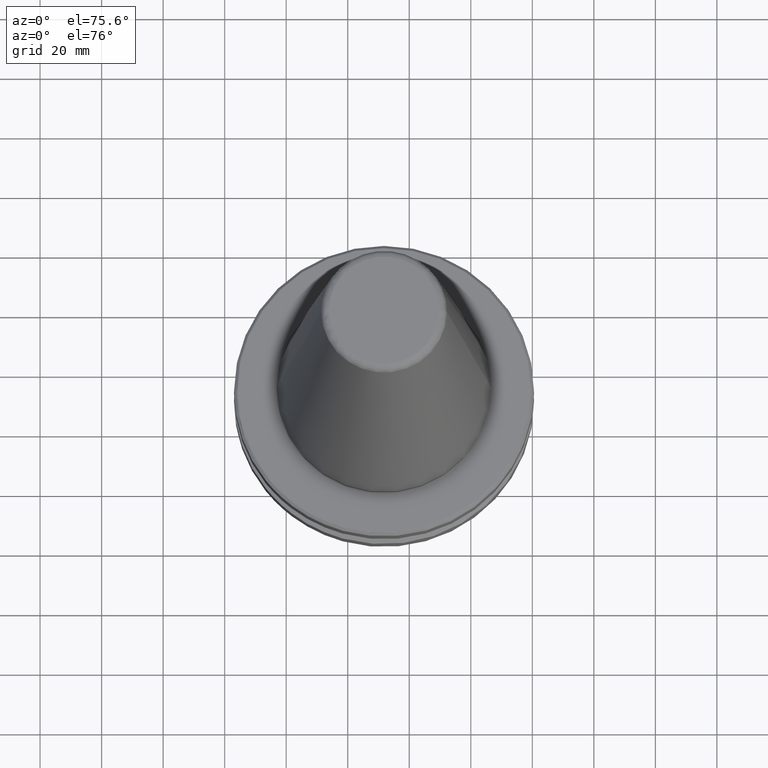
[diagram: clean part render]
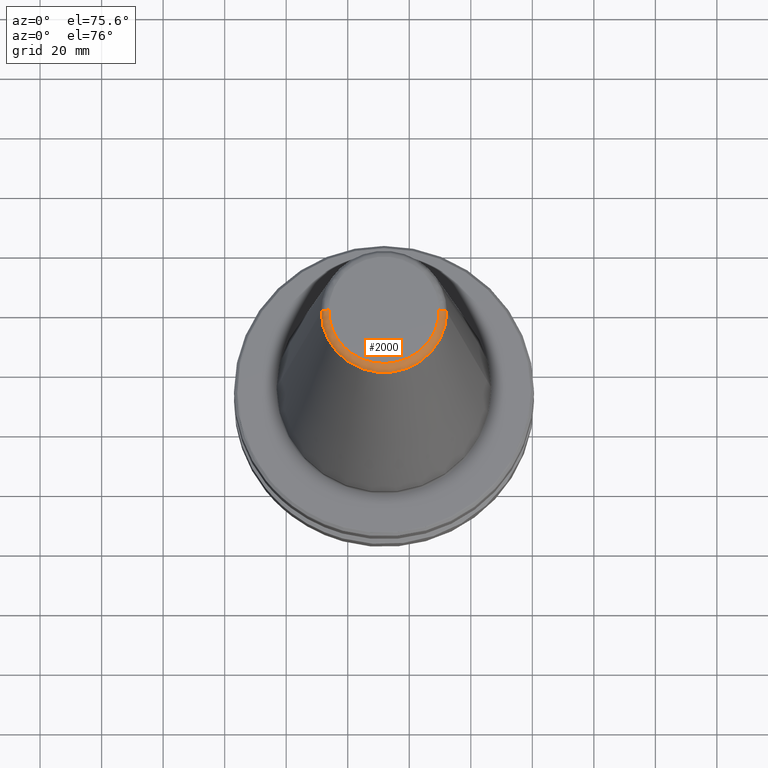
[diagram: same view with one face highlighted and labeled with its STEP entity id]
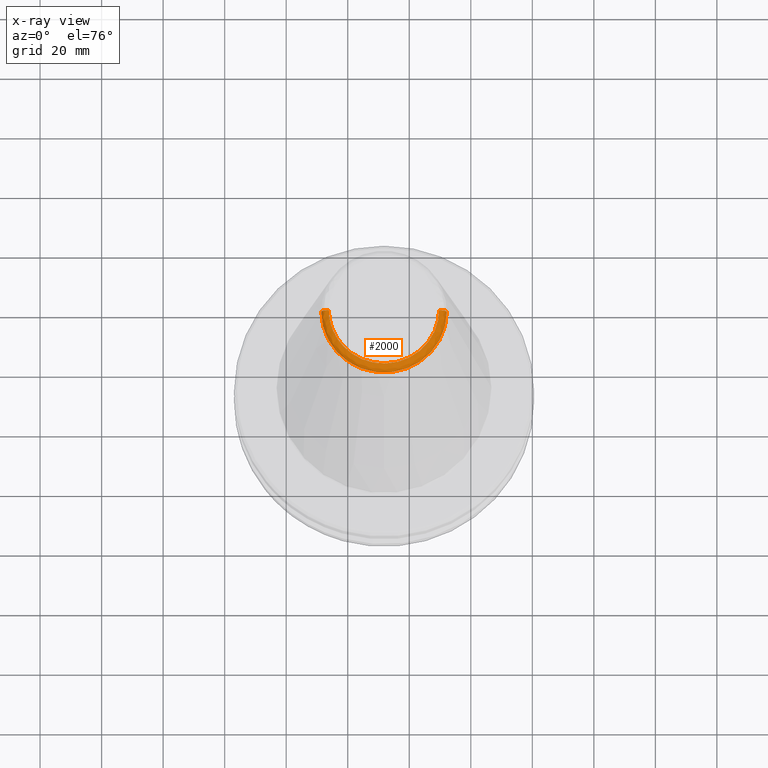
[diagram: x-ray of the same camera — body ghosted, the highlighted face saturated]
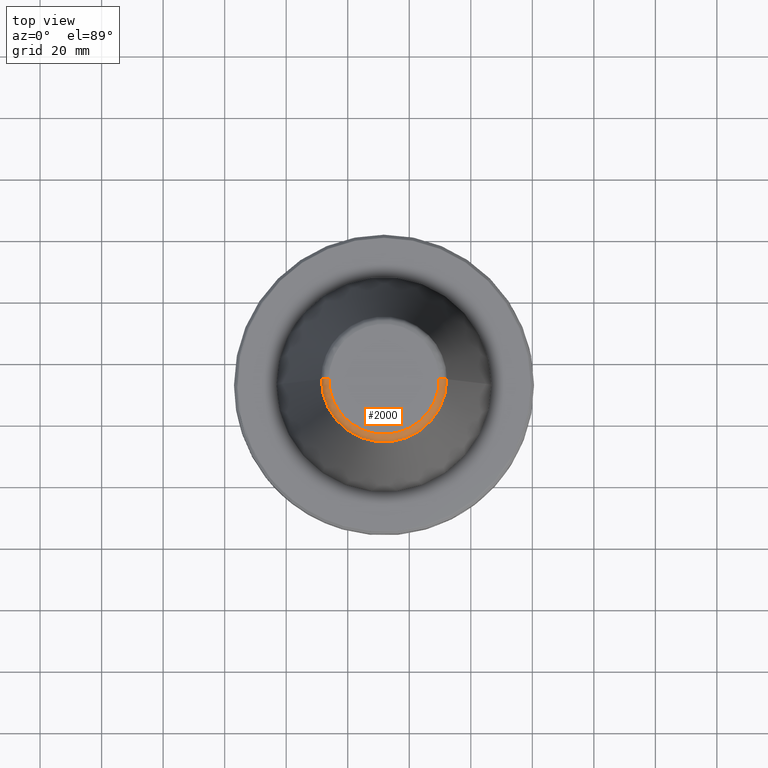
[diagram: same view with one face highlighted and labeled with its STEP entity id]
A machine part, auxiliary view. The second image highlights one B-rep face of the part: STEP entity #2000.
The next image is the same camera in x-ray: the body ghosted, the highlighted face saturated — about 0% of this face is hidden behind the body in this view.
A second angle (top view) of the same face is appended — the face is thin or edge-on in the first view.
In plain terms, the highlighted face is a freeform B-spline surface patch.
Its self-contained STEP definition (entity closure, byte-faithful):
#85 =( BOUNDED_CURVE ( )  B_SPLINE_CURVE ( 3, ( #2917, #3317, #610, #3333 ),
 .UNSPECIFIED., .F., .T. ) 
 B_SPLINE_CURVE_WITH_KNOTS ( ( 4, 4 ),
 ( 0.0000000000000000000, 1.000000000000000000 ),
 .UNSPECIFIED. ) 
 CURVE ( )  GEOMETRIC_REPRESENTATION_ITEM ( )  RATIONAL_B_SPLINE_CURVE ( ( 0.9606698262249131500, 0.3202232754083040300, 0.3202232754083040300, 0.9606698262249131500 ) ) 
 REPRESENTATION_ITEM ( '' )  );
#360 = CARTESIAN_POINT ( 'NONE',  ( 111.0149933382247800, 111.8872747687009900, 199.7495027802803800 ) ) ;
#540 = CARTESIAN_POINT ( 'NONE',  ( 109.7134676108642000, 111.8872747687010000, 199.7495027782804000 ) ) ;
#550 = VERTEX_POINT ( 'NONE', #1501 ) ;
#605 = CARTESIAN_POINT ( 'NONE',  ( 91.78900745422478700, 111.8872747687010000, 197.6102733462804200 ) ) ;
#610 = CARTESIAN_POINT ( 'NONE',  ( 73.86454729743432800, 76.03835445612011800, 199.7495027782804000 ) ) ;
#735 = EDGE_CURVE ( 'NONE', #1506, #550, #2259, .T. ) ;
#738 = ORIENTED_EDGE ( 'NONE', *, *, #4989, .T. ) ;
#778 = CARTESIAN_POINT ( 'NONE',  ( 71.57853619422478200, 71.46633224870099400, 198.8981757232804200 ) ) ;
#796 = CARTESIAN_POINT ( 'NONE',  ( 71.57853619422478200, 111.8872747687009900, 198.8981757232804200 ) ) ;
#842 = EDGE_LOOP ( 'NONE', ( #4970, #3571, #3845, #738 ) ) ;
#857 = CARTESIAN_POINT ( 'NONE',  ( 109.7134676142248000, 76.03835444970100400, 199.7495027782804000 ) ) ;
#951 = CARTESIAN_POINT ( 'NONE',  ( 111.0149933382247800, 111.8872747687009800, 199.7495027802803500 ) ) ;
#1009 = DIRECTION ( 'NONE',  ( -1.000000000000000000, 0.0000000000000000000, 1.360681347180457300E-015 ) ) ;
#1170 = CARTESIAN_POINT ( 'NONE',  ( 111.0149933382247800, 73.43530299970102200, 199.7495027802804100 ) ) ;
#1182 = CARTESIAN_POINT ( 'NONE',  ( 72.56302157022480500, 111.8872747687009900, 199.7495027802803800 ) ) ;
#1225 = CARTESIAN_POINT ( 'NONE',  ( 71.57853619422478200, 111.8872747687009900, 198.8981757232804200 ) ) ;
#1237 = CARTESIAN_POINT ( 'NONE',  ( 109.7134676142247800, 111.8872747687010000, 199.7495027782804000 ) ) ;
#1240 = CARTESIAN_POINT ( 'NONE',  ( 71.39071532422480000, 111.8872747687010000, 197.6102733462803900 ) ) ;
#1397 = CARTESIAN_POINT ( 'NONE',  ( 73.86454729758537500, 111.8872747687010000, 199.7495027782804000 ) ) ;
#1484 =( BOUNDED_CURVE ( )  B_SPLINE_CURVE ( 3, ( #540, #951, #4405, #2094 ),
 .UNSPECIFIED., .F., .F. ) 
 B_SPLINE_CURVE_WITH_KNOTS ( ( 4, 4 ),
 ( 0.06744229110089948500, 0.9325577070699508900 ),
 .UNSPECIFIED. ) 
 CURVE ( )  GEOMETRIC_REPRESENTATION_ITEM ( )  RATIONAL_B_SPLINE_CURVE ( ( 0.9606698262249141500, 0.8046626145418701600, 0.8046626143771260500, 0.9606698257306810500 ) ) 
 REPRESENTATION_ITEM ( '' )  );
#1501 = CARTESIAN_POINT ( 'NONE',  ( 73.86454729758537500, 111.8872747687010000, 199.7495027782804000 ) ) ;
#1506 = VERTEX_POINT ( 'NONE', #2217 ) ;
#1576 = CARTESIAN_POINT ( 'NONE',  ( 73.86454729422479200, 76.03835444970100400, 199.7495027782804000 ) ) ;
#1611 = CARTESIAN_POINT ( 'NONE',  ( 109.7025659593233900, 111.8872747687010000, 199.7495027782636300 ) ) ;
#1715 = CARTESIAN_POINT ( 'NONE',  ( 109.7134676108642000, 111.8872747687010000, 199.7495027782804000 ) ) ;
#2000 = ADVANCED_FACE ( 'NONE', ( #4780 ), #3834, .T. ) ;
#2094 = CARTESIAN_POINT ( 'NONE',  ( 112.1872995842247900, 111.8872747681780300, 197.6102733462803900 ) ) ;
#2217 = CARTESIAN_POINT ( 'NONE',  ( 71.39071532422480000, 111.8872747687010000, 197.6102733462803900 ) ) ;
#2259 =( BOUNDED_CURVE ( )  B_SPLINE_CURVE ( 3, ( #1240, #1225, #4898, #1397 ),
 .UNSPECIFIED., .F., .F. ) 
 B_SPLINE_CURVE_WITH_KNOTS ( ( 4, 4 ),
 ( 0.05879113786594865300, 0.9239065538350027500 ),
 .UNSPECIFIED. ) 
 CURVE ( )  GEOMETRIC_REPRESENTATION_ITEM ( )  RATIONAL_B_SPLINE_CURVE ( ( 0.9606698257306810500, 0.8046626143771260500, 0.8046626145418701600, 0.9606698262249141500 ) ) 
 REPRESENTATION_ITEM ( '' )  );
#2306 = CARTESIAN_POINT ( 'NONE',  ( 73.86454729422479200, 111.8872747687010000, 199.7495027782804000 ) ) ;
#2322 = CARTESIAN_POINT ( 'NONE',  ( 109.7025659593233900, 76.06015775952055000, 199.7495027782636300 ) ) ;
#2420 = CARTESIAN_POINT ( 'NONE',  ( 112.1872995842247900, 111.8872747681780300, 197.6102733462803900 ) ) ;
#2433 = VERTEX_POINT ( 'NONE', #1715 ) ;
#2776 = CIRCLE ( 'NONE', #3550, 20.39829212999999400 ) ;
#2917 = CARTESIAN_POINT ( 'NONE',  ( 109.7134676108642000, 111.8872747687010000, 199.7495027782804000 ) ) ;
#3037 = CARTESIAN_POINT ( 'NONE',  ( 73.89725225892900100, 111.8872747687010000, 199.7495027782301500 ) ) ;
#3091 = CARTESIAN_POINT ( 'NONE',  ( 73.89725225892898700, 76.10376437915968500, 199.7495027782301800 ) ) ;
#3121 = CARTESIAN_POINT ( 'NONE',  ( 109.6807626495205700, 111.8872747687010000, 199.7495027782301500 ) ) ;
#3146 = CARTESIAN_POINT ( 'NONE',  ( 109.6807626495205900, 76.10376437915968500, 199.7495027782301800 ) ) ;
#3183 = EDGE_CURVE ( 'NONE', #2433, #3438, #1484, .T. ) ;
#3194 = CARTESIAN_POINT ( 'NONE',  ( 73.87544894912619500, 76.06015775952055000, 199.7495027782636300 ) ) ;
#3317 = CARTESIAN_POINT ( 'NONE',  ( 109.7134676110152300, 76.03835445612011800, 199.7495027782804000 ) ) ;
#3325 = DIRECTION ( 'NONE',  ( 0.0000000000000000000, 0.0000000000000000000, -1.000000000000000000 ) ) ;
#3333 = CARTESIAN_POINT ( 'NONE',  ( 73.86454729758537500, 111.8872747687010000, 199.7495027782804000 ) ) ;
#3438 = VERTEX_POINT ( 'NONE', #2420 ) ;
#3525 = CARTESIAN_POINT ( 'NONE',  ( 73.87544894912618100, 111.8872747687010000, 199.7495027782636300 ) ) ;
#3550 = AXIS2_PLACEMENT_3D ( 'NONE', #605, #3325, #1009 ) ;
#3571 = ORIENTED_EDGE ( 'NONE', *, *, #4388, .F. ) ;
#3834 =( BOUNDED_SURFACE ( )  B_SPLINE_SURFACE ( 3, 3, ( 
 ( #3037, #3091, #3146, #3121 ),
 ( #5006, #4610, #3916, #4691 ),
 ( #3525, #3194, #2322, #1611 ),
 ( #2306, #1576, #857, #1237 ),
 ( #1182, #4316, #1170, #360 ),
 ( #796, #778, #4677, #4660 ),
 ( #4646, #4626, #4300, #4260 ) ),
 .UNSPECIFIED., .F., .F., .F. ) 
 B_SPLINE_SURFACE_WITH_KNOTS ( ( 4, 3, 4 ),
 ( 4, 4 ),
 ( 0.05879113786603916400, 0.06744229201648321800, 0.9325577070608890300 ),
 ( 0.0000000000000000000, 1.000000000000000000 ),
 .UNSPECIFIED. ) 
 GEOMETRIC_REPRESENTATION_ITEM ( )  RATIONAL_B_SPLINE_SURFACE ( (
 ( 0.9606698262249131500, 0.3202232754083040300, 0.3202232754083040300, 0.9606698262249131500),
 ( 0.9606698262249131500, 0.3202232754083040300, 0.3202232754083040300, 0.9606698262249131500),
 ( 0.9606698262249131500, 0.3202232754083040300, 0.3202232754083040300, 0.9606698262249131500),
 ( 0.9606698262249131500, 0.3202232754083040300, 0.3202232754083040300, 0.9606698262249131500),
 ( 0.8046626145435041800, 0.2682208715145010800, 0.2682208715145010800, 0.8046626145435041800),
 ( 0.8046626143771260500, 0.2682208714590421100, 0.2682208714590421100, 0.8046626143771260500),
 ( 0.9606698257257780800, 0.3202232752419260600, 0.3202232752419260600, 0.9606698257257780800) ) ) 
 REPRESENTATION_ITEM ( '' )  SURFACE ( )  );
#3845 = ORIENTED_EDGE ( 'NONE', *, *, #3183, .F. ) ;
#3916 = CARTESIAN_POINT ( 'NONE',  ( 109.6916643044219900, 76.08196106934012400, 199.7495027782469200 ) ) ;
#4260 = CARTESIAN_POINT ( 'NONE',  ( 112.1872995842247600, 111.8872747687009900, 197.6102733462804200 ) ) ;
#4300 = CARTESIAN_POINT ( 'NONE',  ( 112.1872995842247700, 71.09069050870101600, 197.6102733462804200 ) ) ;
#4316 = CARTESIAN_POINT ( 'NONE',  ( 72.56302157022479100, 73.43530299970102200, 199.7495027802804100 ) ) ;
#4388 = EDGE_CURVE ( 'NONE', #3438, #1506, #2776, .T. ) ;
#4405 = CARTESIAN_POINT ( 'NONE',  ( 111.9994787142248100, 111.8872747687009900, 198.8981757232804200 ) ) ;
#4610 = CARTESIAN_POINT ( 'NONE',  ( 73.88635060402758400, 76.08196106934012400, 199.7495027782469200 ) ) ;
#4626 = CARTESIAN_POINT ( 'NONE',  ( 71.39071532422478600, 71.09069050870101600, 197.6102733462804200 ) ) ;
#4646 = CARTESIAN_POINT ( 'NONE',  ( 71.39071532422478600, 111.8872747687009900, 197.6102733462804200 ) ) ;
#4660 = CARTESIAN_POINT ( 'NONE',  ( 111.9994787142247900, 111.8872747687009900, 198.8981757232804200 ) ) ;
#4677 = CARTESIAN_POINT ( 'NONE',  ( 111.9994787142247900, 71.46633224870099400, 198.8981757232804200 ) ) ;
#4691 = CARTESIAN_POINT ( 'NONE',  ( 109.6916643044219800, 111.8872747687010000, 199.7495027782468900 ) ) ;
#4780 = FACE_OUTER_BOUND ( 'NONE', #842, .T. ) ;
#4898 = CARTESIAN_POINT ( 'NONE',  ( 72.56302157022477700, 111.8872747687009800, 199.7495027802803500 ) ) ;
#4970 = ORIENTED_EDGE ( 'NONE', *, *, #735, .F. ) ;
#4989 = EDGE_CURVE ( 'NONE', #2433, #550, #85, .T. ) ;
#5006 = CARTESIAN_POINT ( 'NONE',  ( 73.88635060402758400, 111.8872747687010000, 199.7495027782468900 ) ) ;